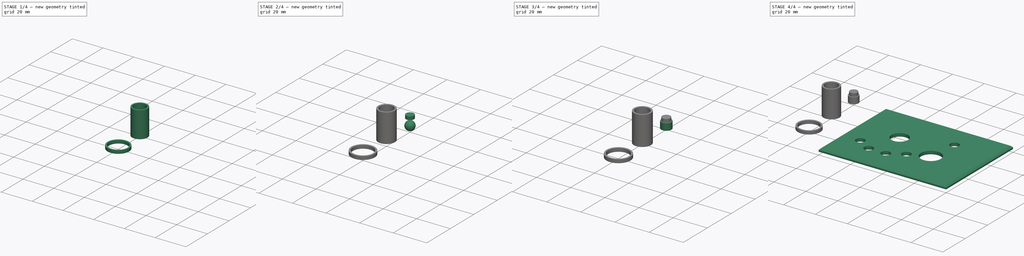
[diagram: build sequence overview — one tinted view per stage of 4, left to right]
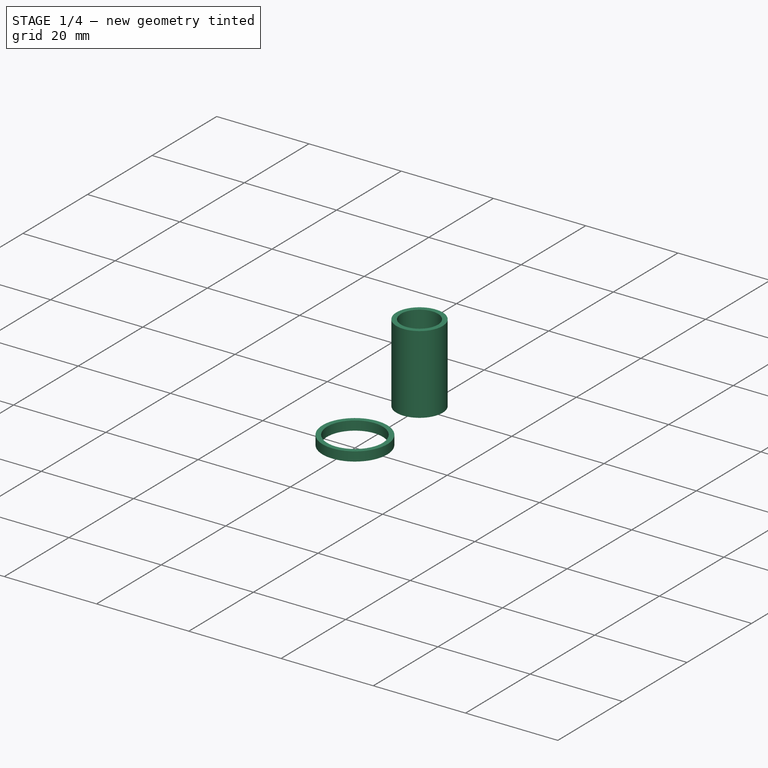
[diagram: stage 1 of 4 — iso view after this stage's code; geometry added in this stage tinted green]
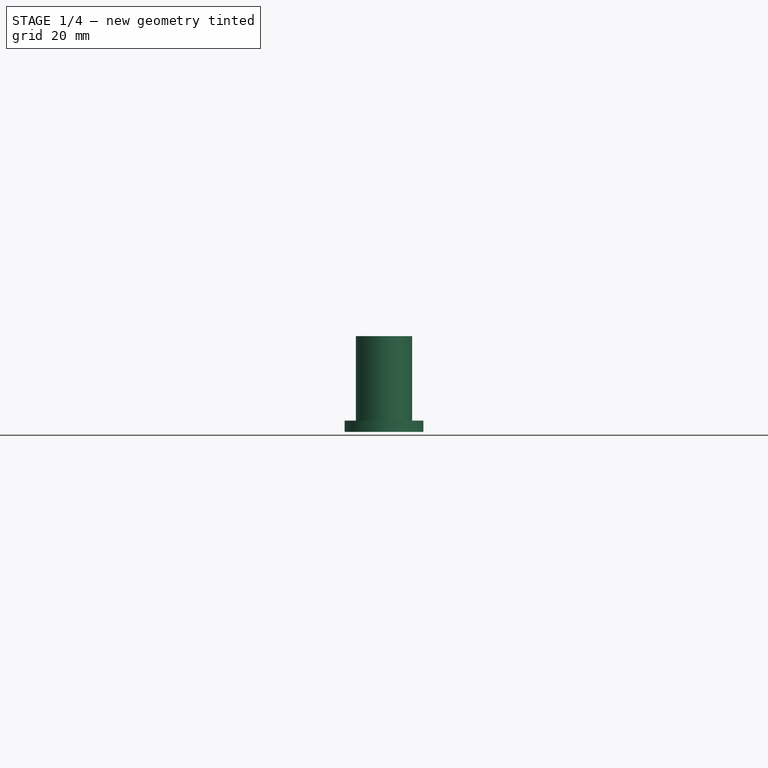
[diagram: stage 1 of 4 — front view after this stage's code; geometry added in this stage tinted green]
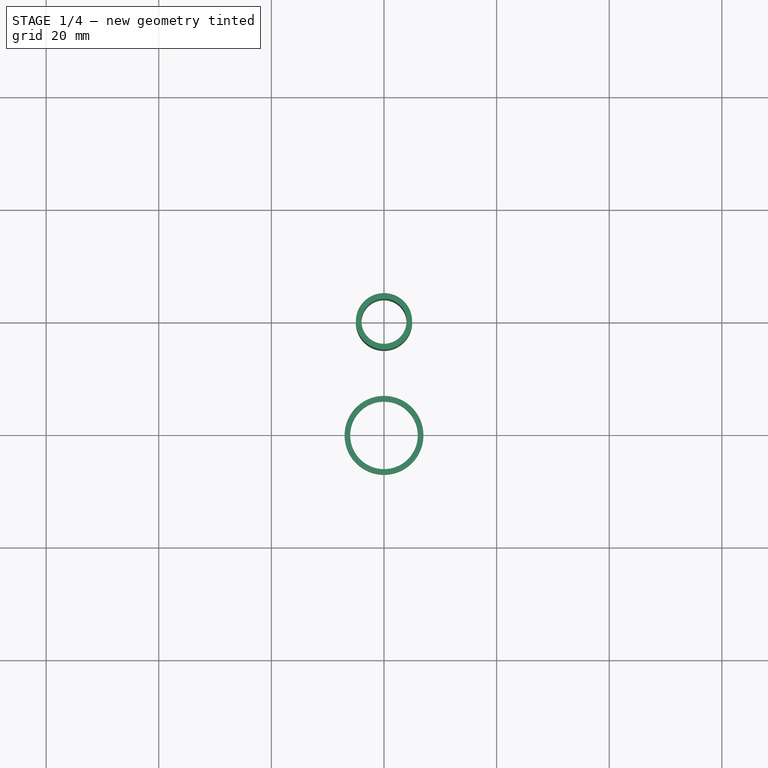
[diagram: stage 1 of 4 — top view after this stage's code; geometry added in this stage tinted green]
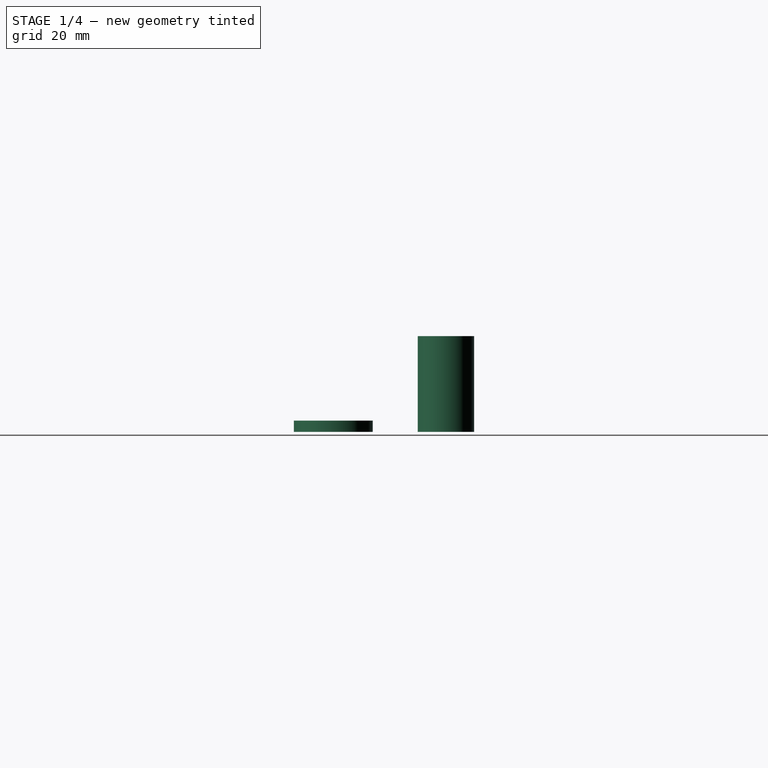
[diagram: stage 1 of 4 — right view after this stage's code; geometry added in this stage tinted green]
FCSTD DOCUMENT  (FreeCAD 0.20R29410 (Git))
Label: Front Panel
License: All rights reserved
LicenseURL: http://en.wikipedia.org/wiki/All_rights_reserved
objects: Part::Cylinder×2, Part::FeaturePython×2, Sketcher::SketchObject×1, Part::Extrusion×1, Part::Chamfer×1, Part::Sphere×1, Part::Cut×1, Part::Fuse×1
note: 10 computed .brp shape members not serialized (recipe doc carries the construction recipe); baked Part::Feature solids carry a one-line shape summary decoded from their .brp

FEATURE [Part::FeaturePython] Tube  label="Shroud"  # WARN: FeaturePython — macro-defined, semantics opaque (R4)
  AttacherType = Attacher::AttachEngine3D
  Height = 17
  InnerRadius = 4
  OuterRadius = 5
  Placement = pos=(-20,-20,0) rot=(0,0,1;0rad)
FEATURE [Part::FeaturePython] Tube001  label="Shim"  # WARN: FeaturePython — macro-defined, semantics opaque (R4)
  AttacherType = Attacher::AttachEngine3D
  Height = 2
  InnerRadius = 6
  OuterRadius = 7
  Placement = pos=(-20,-40,0) rot=(0,0,1;0rad)
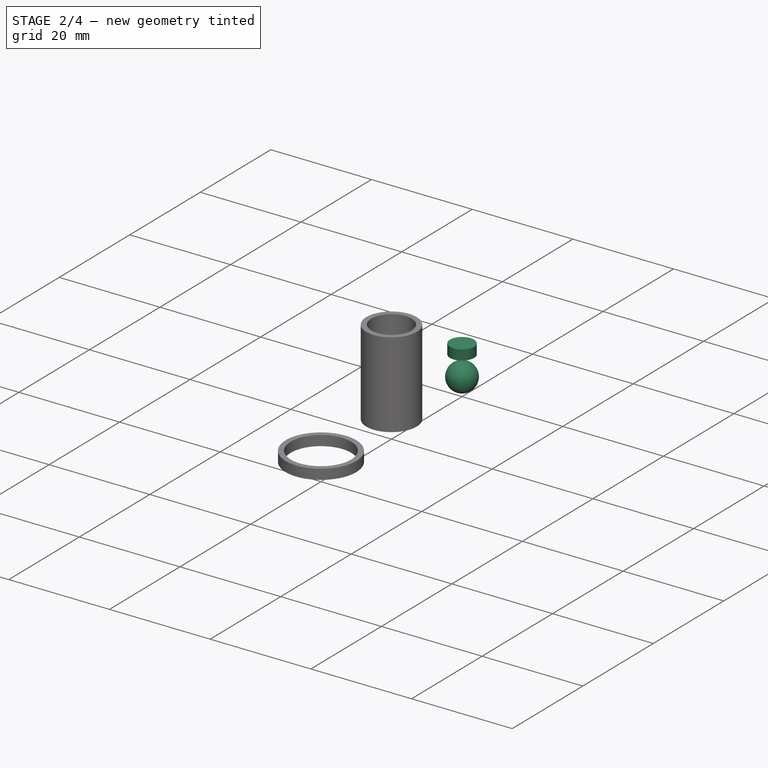
[diagram: stage 2 of 4 — iso view after this stage's code; geometry added in this stage tinted green]
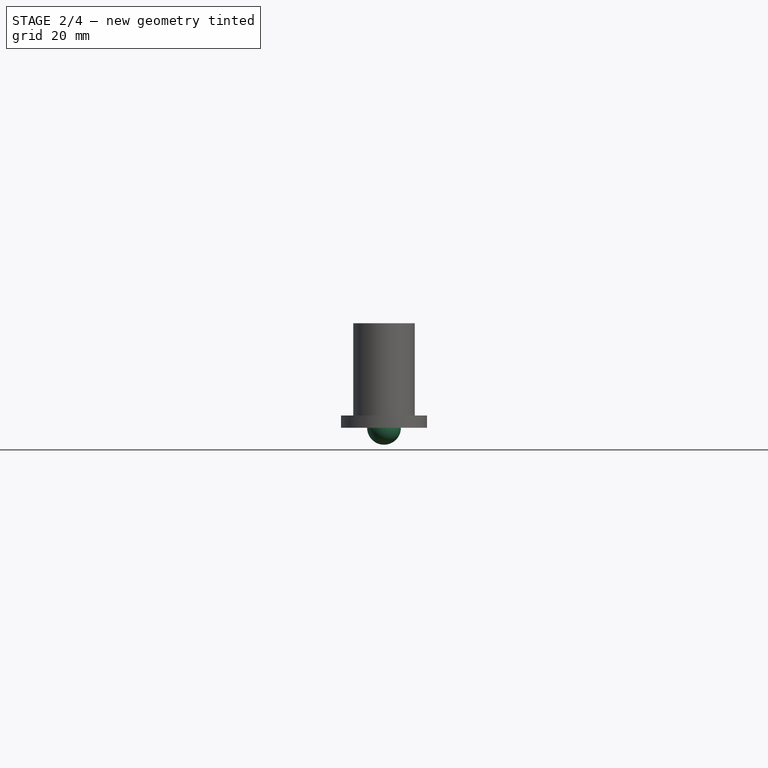
[diagram: stage 2 of 4 — front view after this stage's code; geometry added in this stage tinted green]
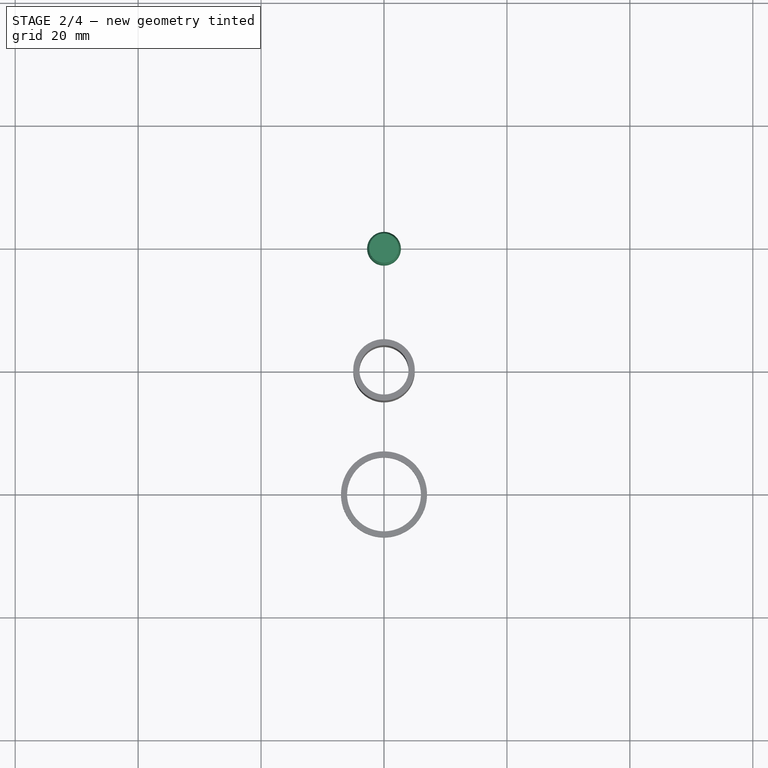
[diagram: stage 2 of 4 — top view after this stage's code; geometry added in this stage tinted green]
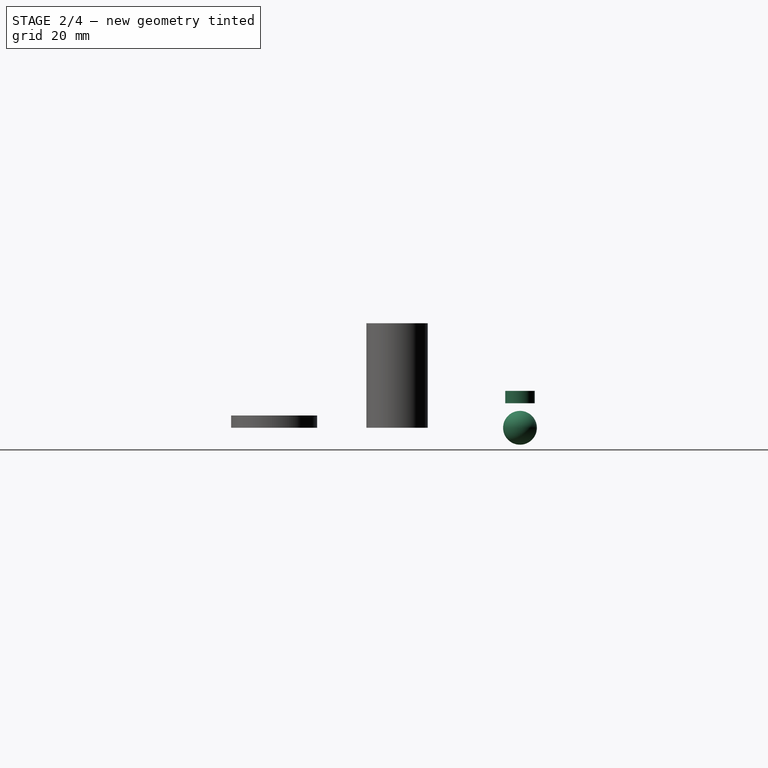
[diagram: stage 2 of 4 — right view after this stage's code; geometry added in this stage tinted green]
FEATURE [Part::Sphere] Sphere
  Angle1 = -90
  Angle2 = 90
  Angle3 = 360
  AttacherType = Attacher::AttachEngine3D
  Placement = pos=(-20,0,0) rot=(0,0,1;0rad)
  Radius = 2.75
FEATURE [Part::Cylinder] Cylinder001
  Angle = 360
  AttacherType = Attacher::AttachEngine3D
  FirstAngle = 0
  Height = 2
  Placement = pos=(-20,0,4) rot=(0,0,1;0rad)
  Radius = 2.4
  SecondAngle = 0
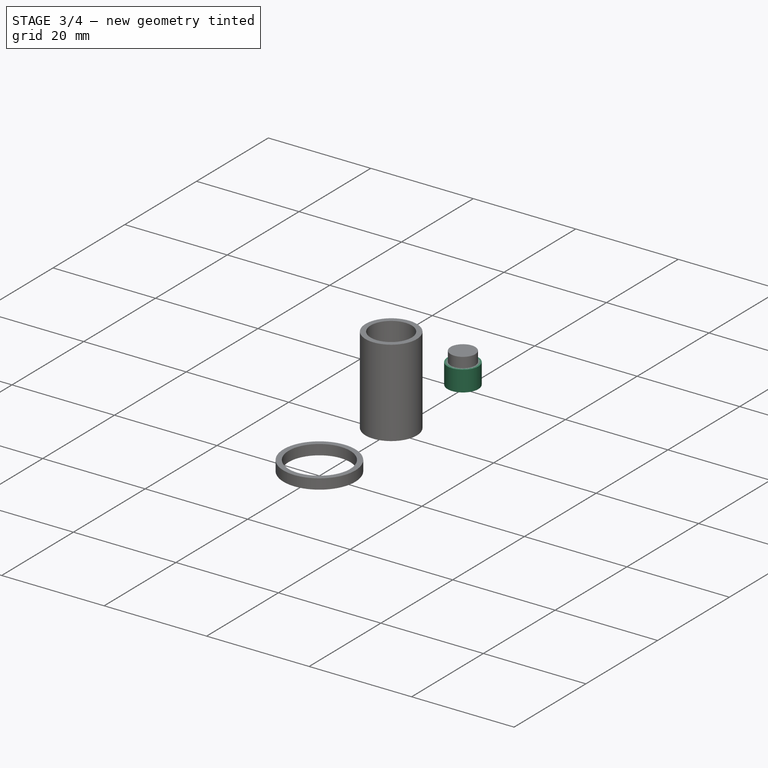
[diagram: stage 3 of 4 — iso view after this stage's code; geometry added in this stage tinted green]
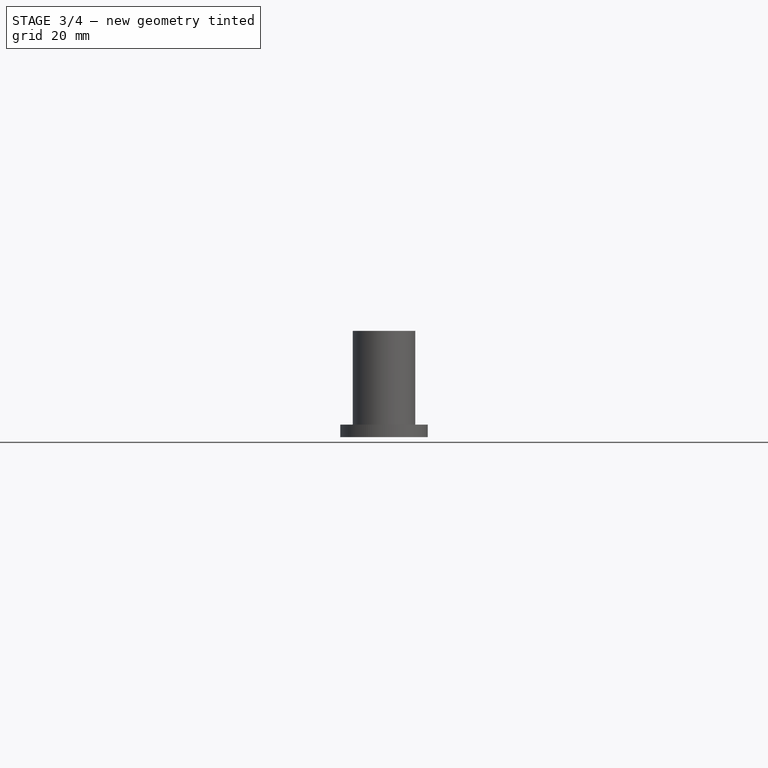
[diagram: stage 3 of 4 — front view after this stage's code; geometry added in this stage tinted green]
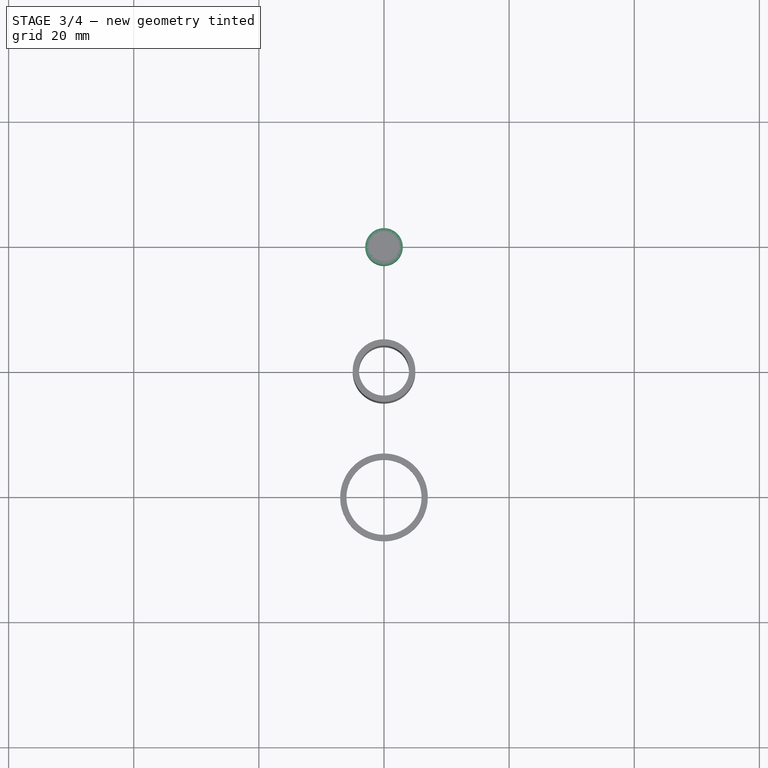
[diagram: stage 3 of 4 — top view after this stage's code; geometry added in this stage tinted green]
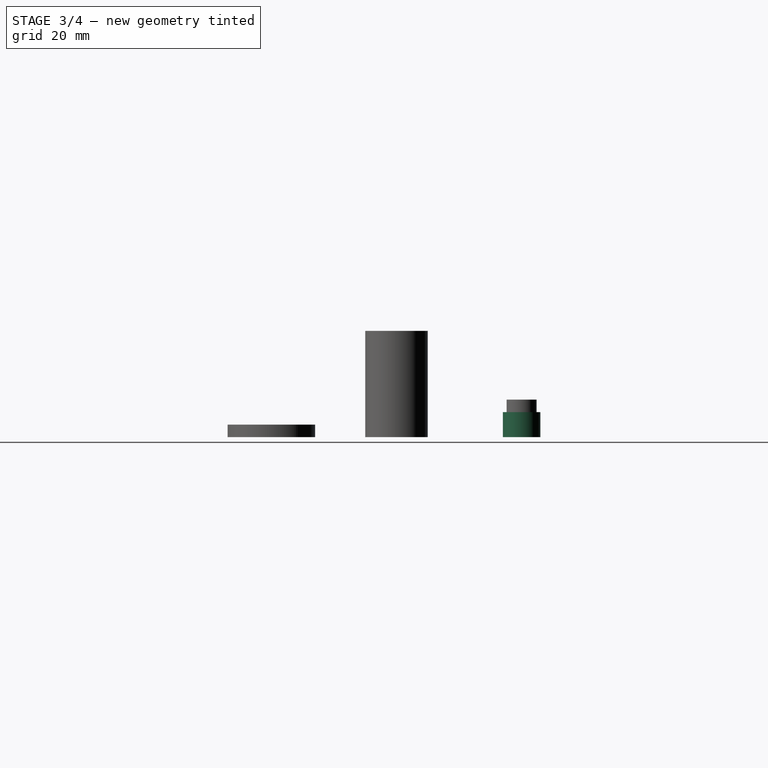
[diagram: stage 3 of 4 — right view after this stage's code; geometry added in this stage tinted green]
FEATURE [Part::Cylinder] Cylinder
  Angle = 360
  AttacherType = Attacher::AttachEngine3D
  FirstAngle = 0
  Height = 4
  Placement = pos=(-20,0,0) rot=(0,0,1;0rad)
  Radius = 3
  SecondAngle = 0
FEATURE [Part::Cut] Cut
  Base = -> Cylinder
  Refine = true
  Tool = -> Sphere
FEATURE [Part::Fuse] Fusion  label="Lightpipe"
  Base = -> Cut
  Refine = true
  Tool = -> Cylinder001
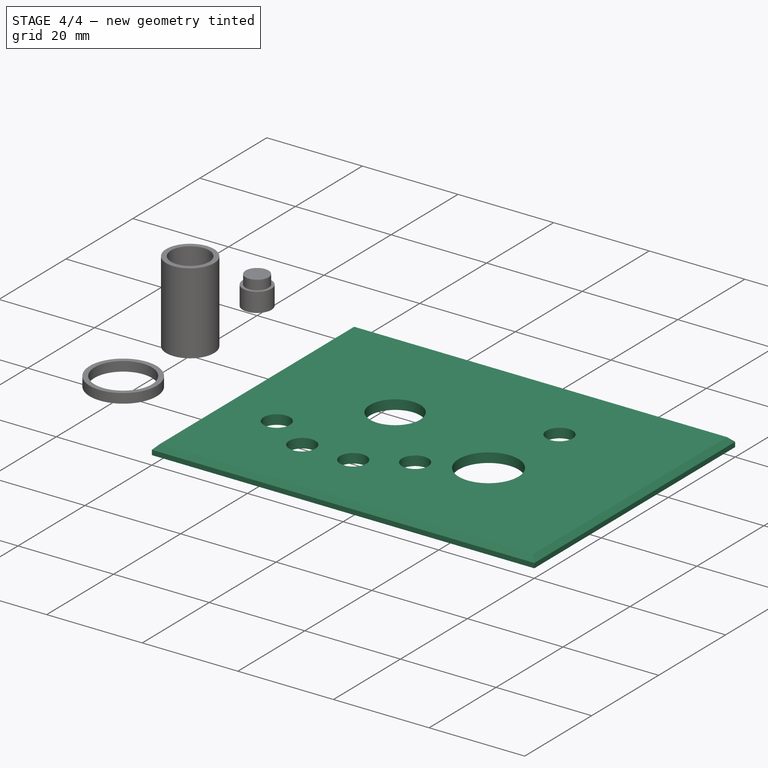
[diagram: stage 4 of 4 — iso view after this stage's code; geometry added in this stage tinted green]
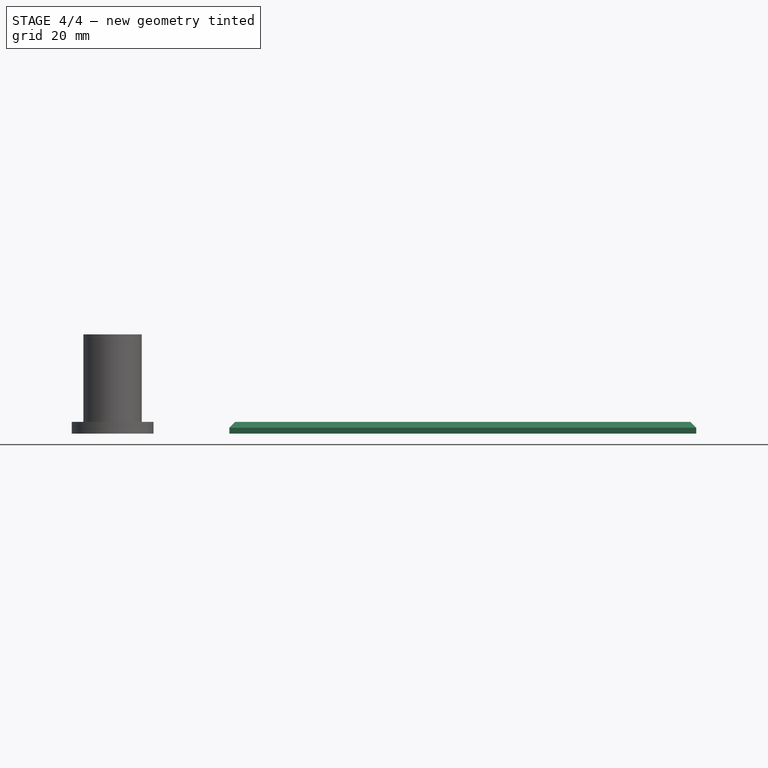
[diagram: stage 4 of 4 — front view after this stage's code; geometry added in this stage tinted green]
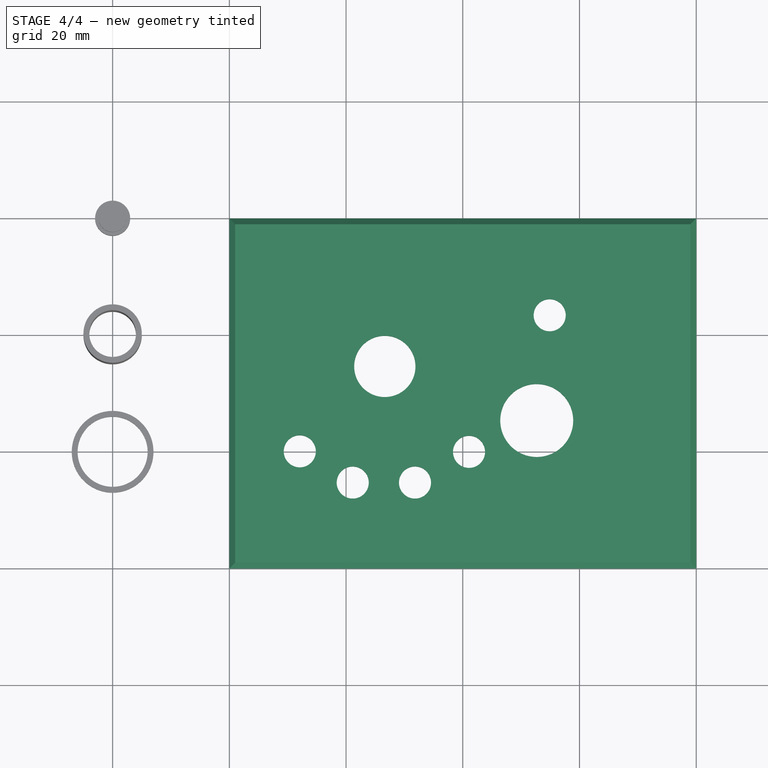
[diagram: stage 4 of 4 — top view after this stage's code; geometry added in this stage tinted green]
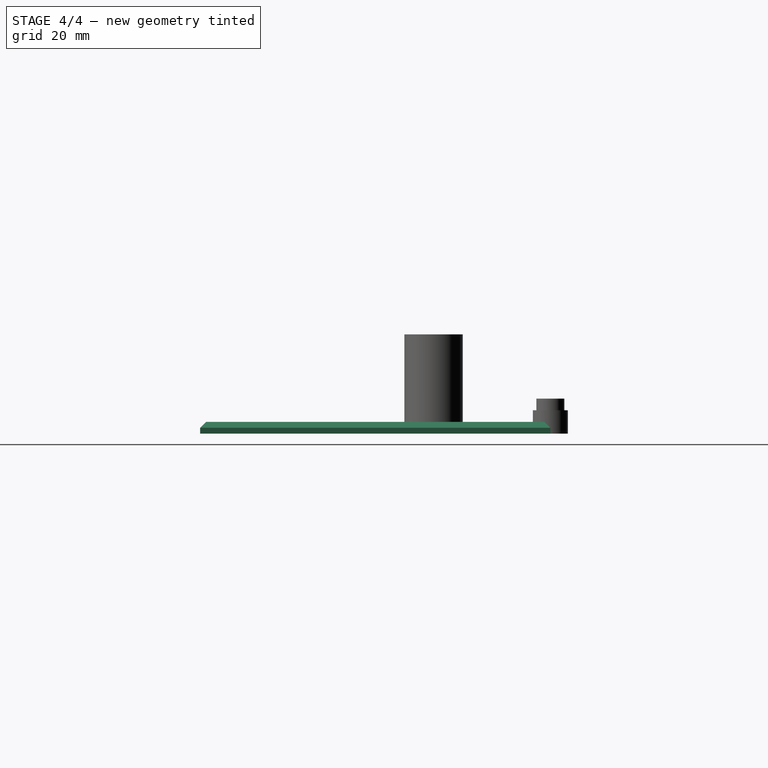
[diagram: stage 4 of 4 — right view after this stage's code; geometry added in this stage tinted green]
FEATURE [Sketcher::SketchObject] Sketch
  FullyConstrained = true
  expr: Constraints[12] = 16.64mm + 10mm
  expr: Constraints[13] = 15.37mm + 10mm
  expr: Constraints[15] = 2.07mm + 10mm
  expr: Constraints[16] = 29.92mm + 10mm
  expr: Constraints[22] = 11.14mm + 10mm
  expr: Constraints[23] = 35.27mm + 10mm
  expr: Constraints[24] = 21.81mm + 10mm
  expr: Constraints[25] = 35.27mm + 10mm
  expr: Constraints[26] = 30.01mm + 10mm
  expr: Constraints[27] = 31.07mm + 10mm
  expr: Constraints[28] = 6.6mm + 10mm
  expr: Constraints[29] = 44.89mm + 10mm
  expr: Constraints[30] = 42.67mm + 10mm
  expr: Constraints[31] = 24.64mm + 10mm
  sketch-geometry (11):
    g0: LineSegment StartX=0 StartY=0 StartZ=0 EndX=80 EndY=0 EndZ=0
    g1: LineSegment StartX=80 StartY=0 StartZ=0 EndX=80 EndY=-60 EndZ=0
    g2: LineSegment StartX=80 StartY=-60 StartZ=0 EndX=0 EndY=-60 EndZ=0
    g3: LineSegment StartX=0 StartY=-60 StartZ=0 EndX=0 EndY=0 EndZ=0
    g4: Circle CenterX=26.64 CenterY=-25.37 CenterZ=0 NormalX=0 NormalY=0 NormalZ=1 AngleXU=0 Radius=5.25
    g5: Circle CenterX=12.07 CenterY=-39.92 CenterZ=0 NormalX=0 NormalY=0 NormalZ=1 AngleXU=0 Radius=2.75
    g6: Circle CenterX=21.14 CenterY=-45.27 CenterZ=0 NormalX=0 NormalY=0 NormalZ=1 AngleXU=0 Radius=2.75
    g7: Circle CenterX=31.81 CenterY=-45.27 CenterZ=0 NormalX=0 NormalY=0 NormalZ=1 AngleXU=0 Radius=2.75
    g8: Circle CenterX=41.07 CenterY=-40.01 CenterZ=0 NormalX=0 NormalY=0 NormalZ=1 AngleXU=0 Radius=2.75
    g9: Circle CenterX=54.89 CenterY=-16.6 CenterZ=0 NormalX=0 NormalY=0 NormalZ=1 AngleXU=0 Radius=2.75
    g10: Circle CenterX=52.67 CenterY=-34.64 CenterZ=0 NormalX=0 NormalY=0 NormalZ=1 AngleXU=0 Radius=6.25
  constraints (32):
    c: Coincident(g0,g1)
    c: Coincident(g1,g2)
    c: Coincident(g2,g3)
    c: Coincident(g3,g0)
    c: Horizontal(g0)
    c: Horizontal(g2)
    c: Vertical(g1)
    c: Vertical(g3)
    c: DistanceY(g3,g3) = 60
    c: DistanceX(g2,g2) = 80
    c: Coincident(g0,g-1)
    c: Diameter(g4) = 10.5
    c: DistanceX(g0,g4) = 26.64
    c: DistanceY(g4,g0) = 25.37
    c: Diameter(g5) = 5.5
    c: DistanceX(g2,g5) = 12.07
    c: DistanceY(g5,g0) = 39.92
    c: Diameter(g9) = 5.5
    c: Diameter(g8) = 5.5
    c: Diameter(g7) = 5.5
    c: Diameter(g6) = 5.5
    c: Diameter(g10) = 12.5
    c: DistanceX(g2,g6) = 21.14
    c: DistanceY(g6,g0) = 45.27
    c: DistanceX(g2,g7) = 31.81
    c: DistanceY(g7,g0) = 45.27
    c: DistanceY(g8,g0) = 40.01
    c: DistanceX(g2,g8) = 41.07
    c: DistanceY(g9,g0) = 16.6
    c: DistanceX(g0,g9) = 54.89
    c: DistanceX(g0,g10) = 52.67
    c: DistanceY(g10,g0) = 34.64
FEATURE [Part::Extrusion] Extrude
  Base = -> Sketch
  Dir = (0,0,1)
  DirMode = 2
  FaceMakerClass = Part::FaceMakerBullseye
  LengthFwd = 2
  LengthRev = 0
  Solid = true
  Symmetric = false
FEATURE [Part::Chamfer] Chamfer  label="Panel"
  Base = -> Extrude
  Edges = 4 edges r=1: [Edge4,Edge7,Edge10,Edge12]
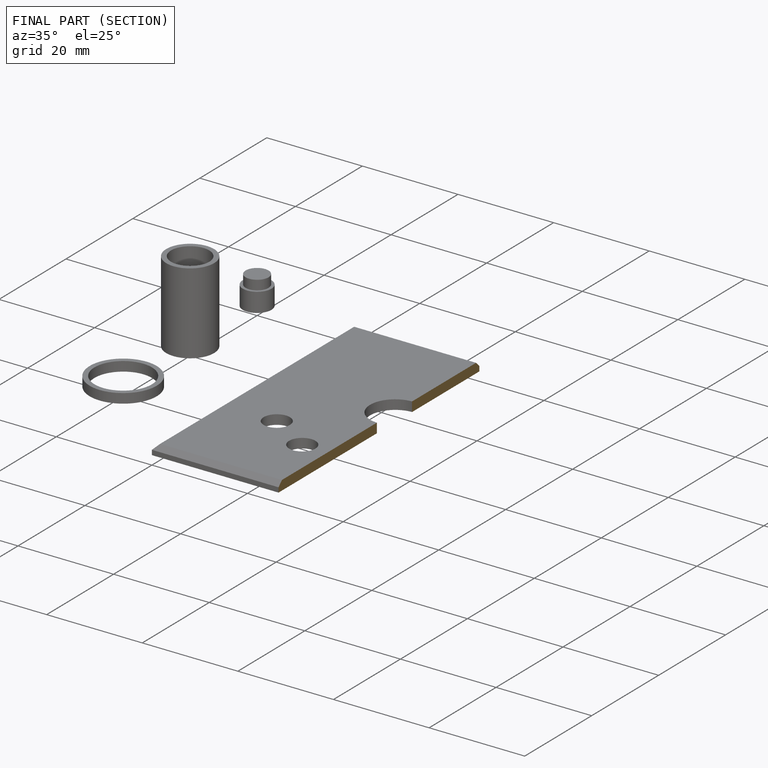
[diagram: finished part — half-section view (interior)]
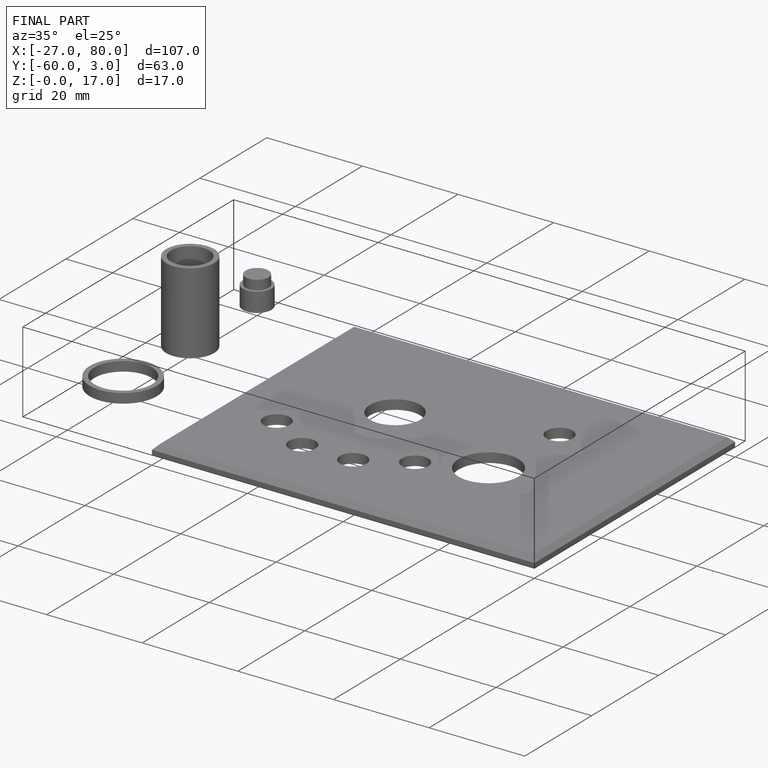
[diagram: finished part — iso view with bounding-box wireframe]
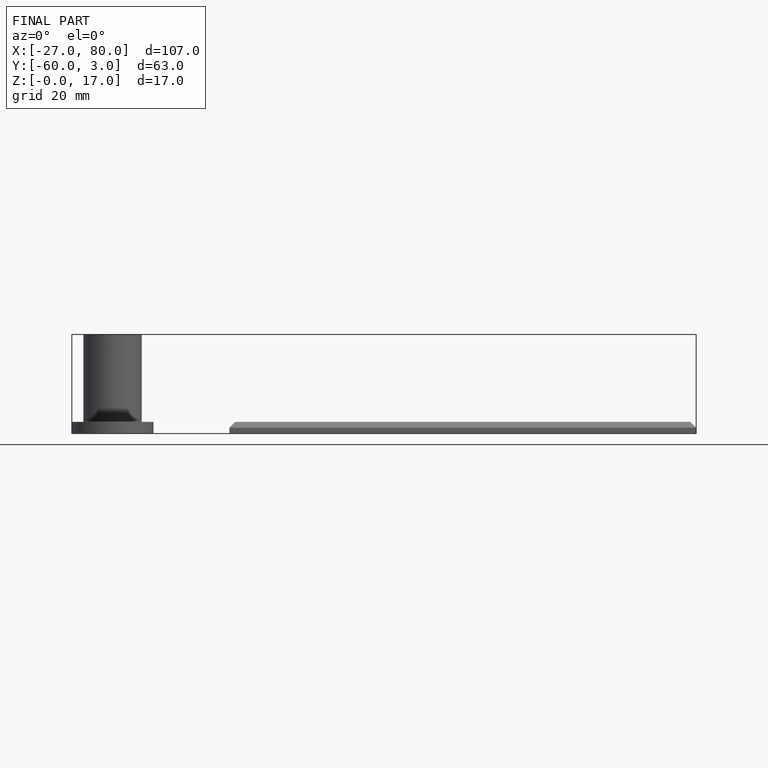
[diagram: finished part — front view with bounding-box wireframe]
